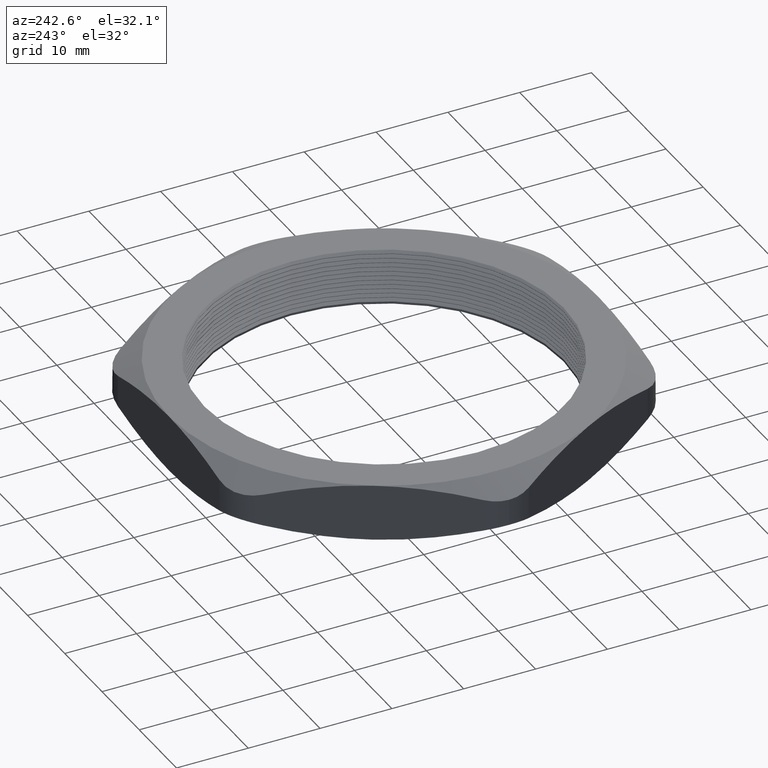
[diagram: clean part render]
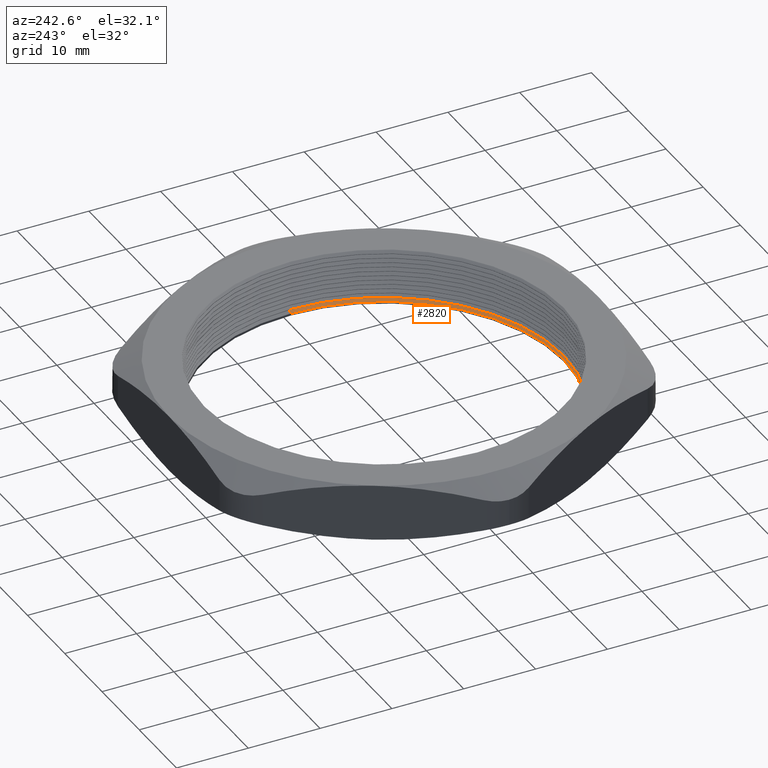
[diagram: same view with one face highlighted and labeled with its STEP entity id]
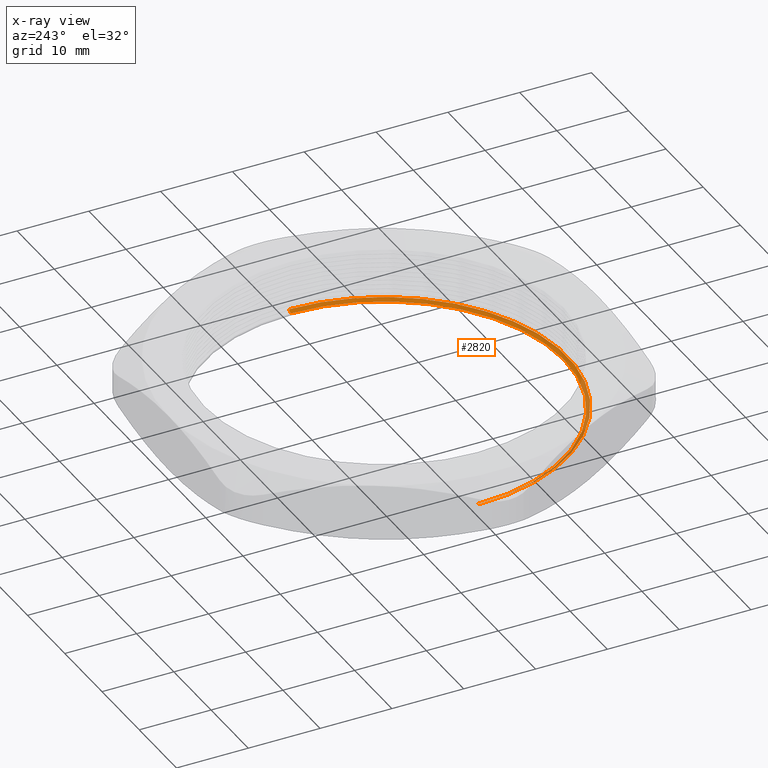
[diagram: x-ray of the same camera — body ghosted, the highlighted face saturated]
A machine part, auxiliary view. The second image highlights one B-rep face of the part: STEP entity #2820.
The next image is the same camera in x-ray: the body ghosted, the highlighted face saturated — about 22% of this face is hidden behind the body in this view.
In plain terms, the highlighted conical surface has half-angle 60 deg.
Its self-contained STEP definition (entity closure, byte-faithful):
#1180 = DIRECTION ( 'NONE',  ( 0.8660254037844360400, 0.0000000000000000000, 0.5000000000000045500 ) ) ;
#1181 = VECTOR ( 'NONE', #1180, 39.37007874015748100 ) ;
#1182 = CARTESIAN_POINT ( 'NONE',  ( 0.9849999999999999900, 0.0000000000000000000, 0.01190598923241496500 ) ) ;
#1188 = LINE ( 'NONE', #1182, #1181 ) ;
#1959 = CARTESIAN_POINT ( 'NONE',  ( 1.005000000000000100, 1.230770033143090100E-016, 0.02345299461620765600 ) ) ;
#1960 = DIRECTION ( 'NONE',  ( 1.000000000000000000, 0.0000000000000000000, 0.0000000000000000000 ) ) ;
#1961 = DIRECTION ( 'NONE',  ( 0.0000000000000000000, 0.0000000000000000000, 1.000000000000000000 ) ) ;
#1962 = CARTESIAN_POINT ( 'NONE',  ( 0.0000000000000000000, 0.0000000000000000000, 0.02345299461620765600 ) ) ;
#1963 = AXIS2_PLACEMENT_3D ( 'NONE', #1962, #1961, #1960 ) ;
#1964 = CIRCLE ( 'NONE', #1963, 1.005000000000000100 ) ;
#1994 = DIRECTION ( 'NONE',  ( 1.000000000000000000, 0.0000000000000000000, 0.0000000000000000000 ) ) ;
#1995 = DIRECTION ( 'NONE',  ( 0.0000000000000000000, 0.0000000000000000000, 1.000000000000000000 ) ) ;
#1996 = CARTESIAN_POINT ( 'NONE',  ( 0.0000000000000000000, 0.0000000000000000000, 0.01190598923241496500 ) ) ;
#1997 = AXIS2_PLACEMENT_3D ( 'NONE', #1996, #1995, #1994 ) ;
#1999 = CONICAL_SURFACE ( 'NONE', #1997, 0.9849999999999999900, 1.047197551196592500 ) ;
#2000 = FACE_OUTER_BOUND ( 'NONE', #2801, .T. ) ;
#2005 = CARTESIAN_POINT ( 'NONE',  ( 0.9849999999999999900, 1.206277097160143100E-016, 0.01190598923241496500 ) ) ;
#2006 = DIRECTION ( 'NONE',  ( -0.8660254037844360400, 1.060575238724903700E-016, 0.5000000000000045500 ) ) ;
#2007 = VECTOR ( 'NONE', #2006, 39.37007874015748100 ) ;
#2008 = CARTESIAN_POINT ( 'NONE',  ( -0.9849999999999999900, 1.206277097160143100E-016, 0.01190598923241496500 ) ) ;
#2009 = LINE ( 'NONE', #2008, #2007 ) ;
#2010 = CARTESIAN_POINT ( 'NONE',  ( -0.9849999999999999900, 0.0000000000000000000, 0.01190598923241496500 ) ) ;
#2011 = CARTESIAN_POINT ( 'NONE',  ( -1.005000000000000100, 0.0000000000000000000, 0.02345299461620765600 ) ) ;
#2012 = DIRECTION ( 'NONE',  ( 1.000000000000000000, 0.0000000000000000000, 0.0000000000000000000 ) ) ;
#2013 = DIRECTION ( 'NONE',  ( 0.0000000000000000000, 0.0000000000000000000, 1.000000000000000000 ) ) ;
#2014 = AXIS2_PLACEMENT_3D ( 'NONE', #2021, #2013, #2012 ) ;
#2015 = CIRCLE ( 'NONE', #2014, 0.9849999999999999900 ) ;
#2021 = CARTESIAN_POINT ( 'NONE',  ( 0.0000000000000000000, 0.0000000000000000000, 0.01190598923241496500 ) ) ;
#2396 = EDGE_CURVE ( 'NONE', #2816, #2804, #1188, .T. ) ;
#2801 = EDGE_LOOP ( 'NONE', ( #2813, #2817, #2802, #2805 ) ) ;
#2802 = ORIENTED_EDGE ( 'NONE', *, *, #2803, .T. ) ;
#2803 = EDGE_CURVE ( 'NONE', #2812, #2804, #1964, .T. ) ;
#2804 = VERTEX_POINT ( 'NONE', #1959 ) ;
#2805 = ORIENTED_EDGE ( 'NONE', *, *, #2396, .F. ) ;
#2810 = EDGE_CURVE ( 'NONE', #2814, #2816, #2015, .T. ) ;
#2812 = VERTEX_POINT ( 'NONE', #2011 ) ;
#2813 = ORIENTED_EDGE ( 'NONE', *, *, #2810, .F. ) ;
#2814 = VERTEX_POINT ( 'NONE', #2010 ) ;
#2815 = EDGE_CURVE ( 'NONE', #2814, #2812, #2009, .T. ) ;
#2816 = VERTEX_POINT ( 'NONE', #2005 ) ;
#2817 = ORIENTED_EDGE ( 'NONE', *, *, #2815, .T. ) ;
#2820 = ADVANCED_FACE ( 'NONE', ( #2000 ), #1999, .F. ) ;